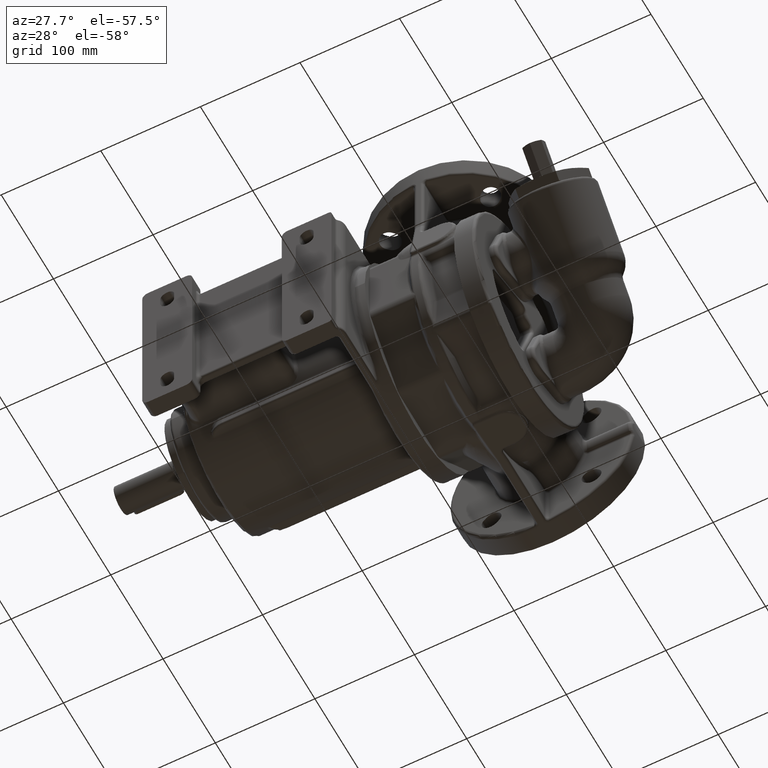
[diagram: clean part render]
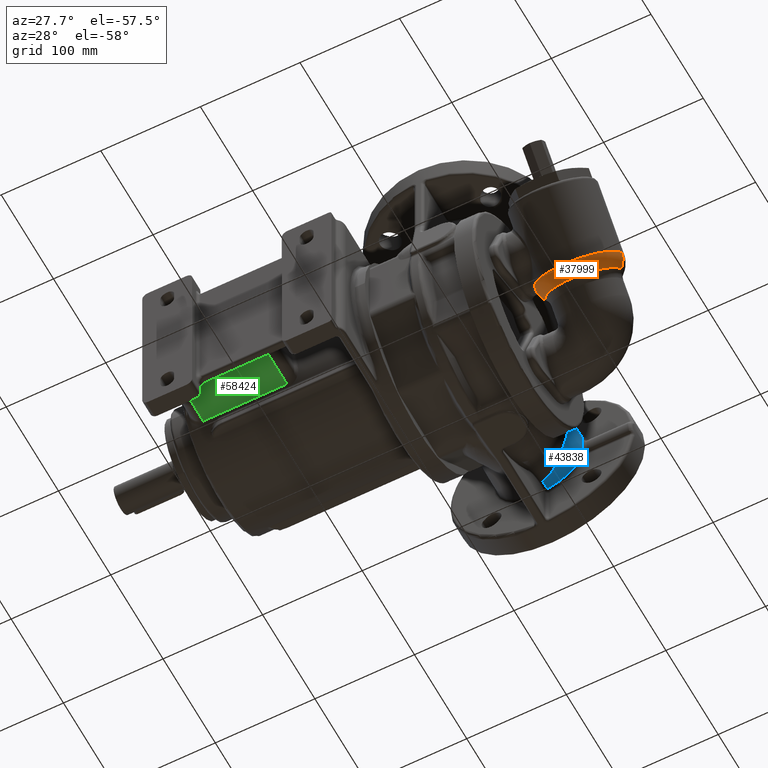
[diagram: same view with three faces highlighted in distinct colors, each labeled with its STEP entity id]
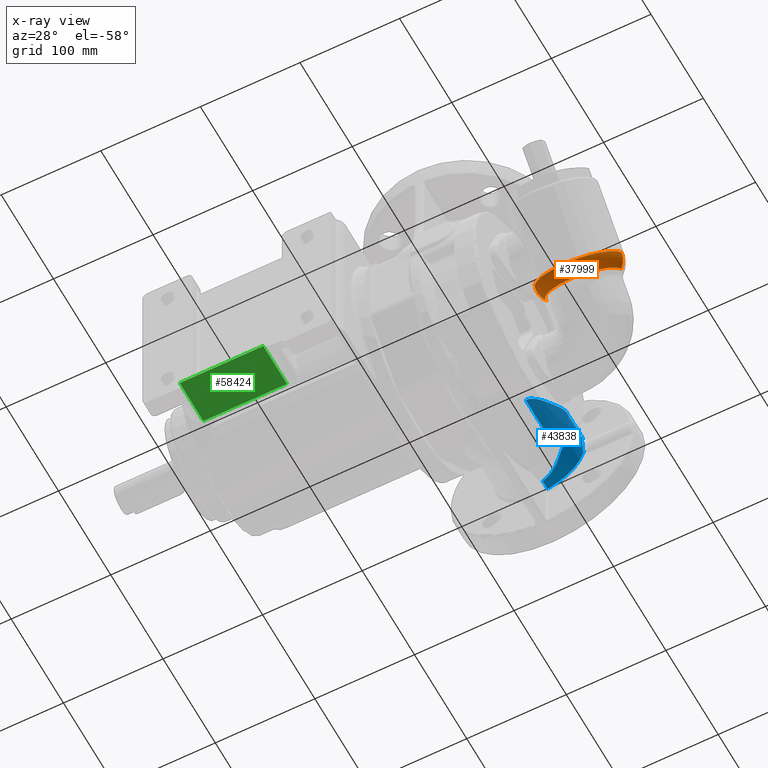
[diagram: x-ray of the same camera — body ghosted, the three highlighted faces saturated]
A machine part, auxiliary view with three faces highlighted in distinct colors.
The next image is the same camera in x-ray (body ghosted, the three faces saturated) — at least one of them is partly hidden behind the body in this view.
Their STEP definitions:

[orange] entity #37999 — the highlighted toroidal blend (fillet) surface has major radius 22.5 mm and minor (blend) radius 20 mm.
#6096=CARTESIAN_POINT('',(1.79E2,-1.590990257670E1,1.590990257670E1));
#6097=DIRECTION('',(0.E0,-7.071067811865E-1,7.071067811865E-1));
#6098=DIRECTION('',(-9.073090748338E-1,-2.973131705158E-1,-2.973131705158E-1));
#6099=AXIS2_PLACEMENT_3D('',#6096,#6097,#6098);
#6205=CARTESIAN_POINT('',(1.79E2,-6.311013480818E0,6.311013480818E0));
#6206=DIRECTION('',(0.E0,-7.071067811865E-1,7.071067811865E-1));
#6207=DIRECTION('',(-1.E0,0.E0,0.E0));
#6208=AXIS2_PLACEMENT_3D('',#6205,#6206,#6207);
#6210=CARTESIAN_POINT('',(1.371925188613E2,-1.222064980557E1,1.222064980557E1));
#6211=CARTESIAN_POINT('',(1.371925188592E2,-1.241578668380E1,1.202551306773E1));
#6212=CARTESIAN_POINT('',(1.371961475407E2,-1.281062971953E1,1.164025214782E1));
#6213=CARTESIAN_POINT('',(1.372124981408E2,-1.341705676913E1,1.107694824671E1));
#6214=CARTESIAN_POINT('',(1.372397667813E2,-1.403622617381E1,1.052952719948E1));
#6215=CARTESIAN_POINT('',(1.372779667228E2,-1.466734413773E1,9.998561249368E0));
#6216=CARTESIAN_POINT('',(1.373271287975E2,-1.530962062334E1,9.484571353425E0));
#6217=CARTESIAN_POINT('',(1.373872806116E2,-1.596212133241E1,8.988119521953E0));
#6218=CARTESIAN_POINT('',(1.374584635580E2,-1.662399777997E1,8.509629649394E0));
#6219=CARTESIAN_POINT('',(1.375407252659E2,-1.729437834494E1,8.049483013078E0));
#6220=CARTESIAN_POINT('',(1.376341204536E2,-1.797239762651E1,7.607997300862E0));
#6221=CARTESIAN_POINT('',(1.377387130676E2,-1.865721346625E1,7.185421527930E0));
#6222=CARTESIAN_POINT('',(1.378545750662E2,-1.934799932101E1,6.781946082161E0));
#6223=CARTESIAN_POINT('',(1.379817878149E2,-2.004395481947E1,6.397700865120E0));
#6224=CARTESIAN_POINT('',(1.381204415103E2,-2.074430432267E1,6.032762244935E0));
#6225=CARTESIAN_POINT('',(1.382706359402E2,-2.144830131718E1,5.687155244291E0));
#6226=CARTESIAN_POINT('',(1.384324812599E2,-2.215523134939E1,5.360857124907E0));
#6227=CARTESIAN_POINT('',(1.386060989676E2,-2.286441327797E1,5.053801013261E0));
#6228=CARTESIAN_POINT('',(1.387916215160E2,-2.357519502708E1,4.765881833091E0));
#6229=CARTESIAN_POINT('',(1.389891932427E2,-2.428695567025E1,4.496959793906E0));
#6230=CARTESIAN_POINT('',(1.391989699979E2,-2.499910074762E1,4.246865272354E0));
#6231=CARTESIAN_POINT('',(1.394211190810E2,-2.571105957208E1,4.015402679458E0));
#6232=CARTESIAN_POINT('',(1.396558194069E2,-2.642228347800E1,3.802352113378E0));
#6233=CARTESIAN_POINT('',(1.399032738270E2,-2.713227557354E1,3.607463481014E0));
#6234=CARTESIAN_POINT('',(1.401636692340E2,-2.784047567169E1,3.430492436284E0));
#6235=CARTESIAN_POINT('',(1.403459959116E2,-2.831097980187E1,3.324292417432E0));
#6236=CARTESIAN_POINT('',(1.404393643233E2,-2.854571232238E1,3.274092831016E0));
#6264=CARTESIAN_POINT('',(1.371925188613E2,-1.222064980557E1,1.222064980557E1));
#6266=CARTESIAN_POINT('',(1.565E2,-1.590990257670E1,1.590990257670E1));
#6267=DIRECTION('',(0.E0,7.071067811865E-1,7.071067811865E-1));
#6268=DIRECTION('',(-7.34375E-1,4.799444547940E-1,-4.799444547940E-1));
#6269=AXIS2_PLACEMENT_3D('',#6266,#6267,#6268);
#6276=CARTESIAN_POINT('',(2.015E2,-1.590990257670E1,1.590990257670E1));
#6277=DIRECTION('',(0.E0,-7.071067811865E-1,-7.071067811865E-1));
#6278=DIRECTION('',(7.34375E-1,4.799444547940E-1,-4.799444547940E-1));
#6279=AXIS2_PLACEMENT_3D('',#6276,#6277,#6278);
#22942=CARTESIAN_POINT('',(1.418125E2,-6.311013480818E0,6.311013480818E0));
#22944=VERTEX_POINT('',#22942);
#22946=CARTESIAN_POINT('',(2.161875E2,-6.311013480818E0,6.311013480818E0));
#22948=VERTEX_POINT('',#22946);
#22949=CARTESIAN_POINT('',(2.215E2,-1.590990257670E1,1.590990257670E1));
#22950=VERTEX_POINT('',#22949);
#22955=CARTESIAN_POINT('',(1.404393643196E2,-2.854571232362E1,
3.274092829776E0));
#22956=VERTEX_POINT('',#22955);
#22973=VERTEX_POINT('',#6264);
#37983=CARTESIAN_POINT('',(1.79E2,-1.590990257670E1,1.590990257670E1));
#37984=DIRECTION('',(0.E0,-7.071067811865E-1,7.071067811865E-1));
#37985=DIRECTION('',(-1.E0,0.E0,0.E0));
#37986=AXIS2_PLACEMENT_3D('',#37983,#37984,#37985);
#37987=TOROIDAL_SURFACE('',#37986,2.25E1,2.E1);
#37988=ORIENTED_EDGE('',*,*,#37976,.T.);
#37990=ORIENTED_EDGE('',*,*,#37989,.F.);
#37992=ORIENTED_EDGE('',*,*,#37991,.F.);
#37994=ORIENTED_EDGE('',*,*,#37993,.T.);
#37996=ORIENTED_EDGE('',*,*,#37995,.T.);
#37997=EDGE_LOOP('',(#37988,#37990,#37992,#37994,#37996));
#37998=FACE_OUTER_BOUND('',#37997,.F.);
#37999=ADVANCED_FACE('',(#37998),#37987,.T.);
#6100=CIRCLE('',#6099,4.25E1);
#6209=CIRCLE('',#6208,3.71875E1);
#6237=B_SPLINE_CURVE_WITH_KNOTS('',3,(#6210,#6211,#6212,#6213,#6214,#6215,#6216,
#6217,#6218,#6219,#6220,#6221,#6222,#6223,#6224,#6225,#6226,#6227,#6228,#6229,
#6230,#6231,#6232,#6233,#6234,#6235,#6236),.UNSPECIFIED.,.F.,.F.,(4,1,1,1,1,1,1,
1,1,1,1,1,1,1,1,1,1,1,1,1,1,1,1,1,4),(0.E0,4.166666666667E-2,8.333333333333E-2,
1.25E-1,1.666666666667E-1,2.083333333333E-1,2.5E-1,2.916666666667E-1,
3.333333333333E-1,3.75E-1,4.166666666667E-1,4.583333333333E-1,5.E-1,
5.416666666667E-1,5.833333333333E-1,6.25E-1,6.666666666667E-1,7.083333333333E-1,
7.5E-1,7.916666666667E-1,8.333333333333E-1,8.75E-1,9.166666666667E-1,
9.583333333333E-1,1.E0),.UNSPECIFIED.);
#6270=CIRCLE('',#6269,2.E1);
#6280=CIRCLE('',#6279,2.E1);
#37976=EDGE_CURVE('',#22956,#22950,#6100,.T.);
#37989=EDGE_CURVE('',#22948,#22950,#6280,.T.);
#37991=EDGE_CURVE('',#22944,#22948,#6209,.T.);
#37993=EDGE_CURVE('',#22944,#22973,#6270,.T.);
#37995=EDGE_CURVE('',#22973,#22956,#6237,.T.);

[blue] entity #43838 — the highlighted cylindrical surface (partial cylindrical patch) has radius 45 mm, axis along (0, -1, 0).
#8057=CARTESIAN_POINT('',(6.903399398247E1,9.830340739416E1,4.349674679240E1));
#8092=CARTESIAN_POINT('',(6.499999265160E1,9.830339240783E1,4.437059729568E1));
#8158=CARTESIAN_POINT('',(5.75E1,1.4E2,-4.278695813827E-14));
#8159=DIRECTION('',(0.E0,1.E0,0.E0));
#8160=DIRECTION('',(1.666666666667E-1,0.E0,9.860132971833E-1));
#8161=AXIS2_PLACEMENT_3D('',#8158,#8159,#8160);
#8163=CARTESIAN_POINT('',(1.012622750637E2,1.4E2,1.048156864453E1));
#8164=CARTESIAN_POINT('',(1.012881180922E2,1.398713235656E2,1.037366970562E1));
#8165=CARTESIAN_POINT('',(1.013398652534E2,1.396184036645E2,1.015409622970E1));
#8166=CARTESIAN_POINT('',(1.014174539180E2,1.392519061344E2,9.813216345716E0));
#8167=CARTESIAN_POINT('',(1.014945477903E2,1.388991199234E2,9.461718081104E0));
#8168=CARTESIAN_POINT('',(1.015707679617E2,1.385604399025E2,9.100221286058E0));
#8169=CARTESIAN_POINT('',(1.016457292662E2,1.382363144604E2,8.729452558447E0));
#8170=CARTESIAN_POINT('',(1.017190856976E2,1.379270304366E2,8.350043954342E0));
#8171=CARTESIAN_POINT('',(1.017905088917E2,1.376328542703E2,7.962630412139E0));
#8172=CARTESIAN_POINT('',(1.018596915019E2,1.373539865520E2,7.567838497562E0));
#8173=CARTESIAN_POINT('',(1.019263463290E2,1.370906086326E2,7.166294106447E0));
#8174=CARTESIAN_POINT('',(1.019902127205E2,1.368428271671E2,6.758584478795E0));
#8175=CARTESIAN_POINT('',(1.020510515950E2,1.366107364472E2,6.345284227472E0));
#8176=CARTESIAN_POINT('',(1.021086489014E2,1.363943680697E2,5.926928539637E0));
#8177=CARTESIAN_POINT('',(1.021628115883E2,1.361937496592E2,5.504033379622E0));
#8178=CARTESIAN_POINT('',(1.022133690100E2,1.360088591696E2,5.077077847482E0));
#8179=CARTESIAN_POINT('',(1.022601698393E2,1.358396792431E2,4.646518777121E0));
#8180=CARTESIAN_POINT('',(1.023030824158E2,1.356861531696E2,4.212777623507E0));
#8181=CARTESIAN_POINT('',(1.023419921390E2,1.355482365871E2,3.776252179700E0));
#8182=CARTESIAN_POINT('',(1.023768008674E2,1.354258564436E2,3.337310671234E0));
#8183=CARTESIAN_POINT('',(1.024074250263E2,1.353189584839E2,2.896299369471E0));
#8184=CARTESIAN_POINT('',(1.024337947042E2,1.352274684370E2,2.453540472138E0));
#8185=CARTESIAN_POINT('',(1.024558522391E2,1.351513354929E2,2.009337587655E0));
#8186=CARTESIAN_POINT('',(1.024735512964E2,1.350904962418E2,1.563976669825E0));
#8187=CARTESIAN_POINT('',(1.024868559016E2,1.350449133656E2,1.117730024947E0));
#8188=CARTESIAN_POINT('',(1.024957397403E2,1.350145429839E2,6.708586915973E-1));
#8189=CARTESIAN_POINT('',(1.025001855832E2,1.349993677636E2,2.236158376735E-1));
#8190=CARTESIAN_POINT('',(1.025001849151E2,1.349993686015E2,
-2.237501326107E-1));
#8191=CARTESIAN_POINT('',(1.024957377421E2,1.350145512539E2,
-6.709925338234E-1));
#8192=CARTESIAN_POINT('',(1.024868525976E2,1.350449232984E2,-1.117862857203E0));
#8193=CARTESIAN_POINT('',(1.024735467154E2,1.350905133403E2,-1.564108241112E0));
#8194=CARTESIAN_POINT('',(1.024558464389E2,1.351513542212E2,-2.009467219791E0));
#8195=CARTESIAN_POINT('',(1.024337877237E2,1.352274938458E2,-2.453668164051E0));
#8196=CARTESIAN_POINT('',(1.024074169663E2,1.353189854572E2,-2.896424210257E0));
#8197=CARTESIAN_POINT('',(1.023767917566E2,1.354258894380E2,-3.337433045622E0));
#8198=CARTESIAN_POINT('',(1.023419821356E2,1.355482710341E2,-3.776370842221E0));
#8199=CARTESIAN_POINT('',(1.023030715263E2,1.356861928148E2,-4.212893301513E0));
#8200=CARTESIAN_POINT('',(1.022601582886E2,1.358397201332E2,-4.646629928461E0));
#8201=CARTESIAN_POINT('',(1.022133567364E2,1.360089044440E2,-5.077185825479E0));
#8202=CARTESIAN_POINT('',(1.021627988837E2,1.361937959903E2,-5.504136360967E0));
#8203=CARTESIAN_POINT('',(1.021086356956E2,1.363944177536E2,-5.927027820148E0));
#8204=CARTESIAN_POINT('',(1.020510382406E2,1.366107867531E2,-6.345377886765E0));
#8205=CARTESIAN_POINT('',(1.019901990590E2,1.368428799826E2,-6.758674315103E0));
#8206=CARTESIAN_POINT('',(1.019263327161E2,1.370906618705E2,-7.166378407813E0));
#8207=CARTESIAN_POINT('',(1.018596777415E2,1.373540415149E2,-7.567919082717E0));
#8208=CARTESIAN_POINT('',(1.017904953304E2,1.376329095053E2,-7.962705751224E0));
#8209=CARTESIAN_POINT('',(1.017190725548E2,1.379270853105E2,-8.350113448245E0));
#8210=CARTESIAN_POINT('',(1.016457168824E2,1.382363674889E2,-8.729515102862E0));
#8211=CARTESIAN_POINT('',(1.015707559712E2,1.385604922146E2,-9.100279279917E0));
#8212=CARTESIAN_POINT('',(1.014945370076E2,1.388991687171E2,-9.461768079629E0));
#8213=CARTESIAN_POINT('',(1.014174456226E2,1.392519449116E2,-9.813253278937E0));
#8214=CARTESIAN_POINT('',(1.013398606689E2,1.396184260721E2,-1.015411581034E1));
#8215=CARTESIAN_POINT('',(1.012881164682E2,1.398713316833E2,-1.037367648350E1));
#8216=CARTESIAN_POINT('',(1.012622750637E2,1.4E2,-1.048156864453E1));
#8218=CARTESIAN_POINT('',(5.75E1,1.4E2,-4.278695813827E-14));
#8219=DIRECTION('',(0.E0,1.E0,0.E0));
#8220=DIRECTION('',(9.724950014153E-1,0.E0,-2.329237476562E-1));
#8221=AXIS2_PLACEMENT_3D('',#8218,#8219,#8220);
#8223=DIRECTION('',(-8.176820433954E-7,-9.999999999996E-1,2.366474029886E-7));
#8224=VECTOR('',#8223,9.017613873599E0);
#8225=CARTESIAN_POINT('',(6.5E1,1.4E2,-4.437059837325E1));
#8226=LINE('',#8225,#8224);
#8227=CARTESIAN_POINT('',(7.967376191935E1,1.258671095826E2,-3.915769852122E1));
#8228=CARTESIAN_POINT('',(7.967420995754E1,1.258668635909E2,-3.915744482118E1));
#8229=CARTESIAN_POINT('',(7.967515933362E1,1.258666374029E2,-3.915688712333E1));
#8230=CARTESIAN_POINT('',(7.967647867214E1,1.258661020550E2,-3.915614814108E1));
#8231=CARTESIAN_POINT('',(7.967717907582E1,1.258654461505E2,-3.915574962077E1));
#8232=CARTESIAN_POINT('',(7.967749360285E1,1.258650574713E2,-3.915557147444E1));
#8234=CARTESIAN_POINT('',(7.967749360285E1,1.258650574713E2,-3.915557147444E1));
#8235=CARTESIAN_POINT('',(7.968287666457E1,1.258621012184E2,-3.915252253868E1));
#8236=CARTESIAN_POINT('',(7.969379850698E1,1.258564172801E2,-3.914633350091E1));
#8237=CARTESIAN_POINT('',(7.971017144137E1,1.258474111360E2,-3.913704641773E1));
#8238=CARTESIAN_POINT('',(7.972108376237E1,1.258410866489E2,-3.913085069585E1));
#8239=CARTESIAN_POINT('',(7.972662173147E1,1.258380396404E2,-3.912770483241E1));
#8241=CARTESIAN_POINT('',(7.972662173147E1,1.258380396404E2,-3.912770483241E1));
#8242=CARTESIAN_POINT('',(8.020362488068E1,1.255753166797E2,-3.885674130790E1));
#8243=CARTESIAN_POINT('',(8.114144985133E1,1.250349327253E2,-3.830093262950E1));
#8244=CARTESIAN_POINT('',(8.249912379050E1,1.241826790588E2,-3.742860302326E1));
#8245=CARTESIAN_POINT('',(8.380743082735E1,1.232912760484E2,-3.652058712676E1));
#8246=CARTESIAN_POINT('',(8.506678011738E1,1.223644402762E2,-3.557930385291E1));
#8247=CARTESIAN_POINT('',(8.627903400125E1,1.214083906710E2,-3.460584958825E1));
#8248=CARTESIAN_POINT('',(8.744590691510E1,1.204286403942E2,-3.360098138182E1));
#8249=CARTESIAN_POINT('',(8.838182287143E1,1.195966256227E2,-3.273781718850E1));
#8250=CARTESIAN_POINT('',(8.910952389940E1,1.189242809070E2,-3.203171846506E1));
#8251=CARTESIAN_POINT('',(8.946643406165E1,1.185861780600E2,-3.167350773211E1));
#8252=CARTESIAN_POINT('',(8.964314184329E1,1.184166548536E2,-3.149314895674E1));
#8254=CARTESIAN_POINT('',(8.964314184329E1,1.184166548536E2,-3.149314895674E1));
#8255=CARTESIAN_POINT('',(8.991988590679E1,1.182846385302E2,-3.121069315974E1));
#8256=CARTESIAN_POINT('',(9.046666877897E1,1.180186515952E2,-3.063773310693E1));
#8257=CARTESIAN_POINT('',(9.126635202103E1,1.176141723451E2,-2.975412732324E1));
#8258=CARTESIAN_POINT('',(9.204414078242E1,1.172054230567E2,-2.884751121736E1));
#8259=CARTESIAN_POINT('',(9.279896460281E1,1.167934304255E2,-2.791883158406E1));
#8260=CARTESIAN_POINT('',(9.352967533614E1,1.163794515777E2,-2.696926658731E1));
#8261=CARTESIAN_POINT('',(9.423514155458E1,1.159647885517E2,-2.600015828880E1));
#8262=CARTESIAN_POINT('',(9.491420310525E1,1.155509056879E2,-2.501310110064E1));
#8263=CARTESIAN_POINT('',(9.556570528923E1,1.151394631914E2,-2.400995493835E1));
#8264=CARTESIAN_POINT('',(9.618871892122E1,1.147320170097E2,-2.299251413194E1));
#8265=CARTESIAN_POINT('',(9.678211658933E1,1.143303897300E2,-2.196322970132E1));
#8266=CARTESIAN_POINT('',(9.734526276618E1,1.139362289085E2,-2.092410292586E1));
#8267=CARTESIAN_POINT('',(9.787785065053E1,1.135508480602E2,-1.987677390133E1));
#8268=CARTESIAN_POINT('',(9.837933135849E1,1.131758239141E2,-1.882366254277E1));
#8269=CARTESIAN_POINT('',(9.869300926313E1,1.129334087380E2,-1.811860229016E1));
#8270=CARTESIAN_POINT('',(9.884476611535E1,1.128142066322E2,-1.776542470270E1));
#8272=CARTESIAN_POINT('',(9.884476611535E1,1.128142066322E2,-1.776542470270E1));
#8273=CARTESIAN_POINT('',(9.899999988202E1,1.126922709628E2,-1.740415514714E1));
#8274=CARTESIAN_POINT('',(9.930231616926E1,1.124450341808E2,-1.667457548897E1));
#8275=CARTESIAN_POINT('',(9.973243662902E1,1.120650016373E2,-1.555326856078E1));
#8276=CARTESIAN_POINT('',(1.001323711895E2,1.116844753670E2,-1.442078315196E1));
#8277=CARTESIAN_POINT('',(1.004987966766E2,1.113106037796E2,-1.328790232782E1));
#8278=CARTESIAN_POINT('',(1.008286716036E2,1.109512341167E2,-1.216833528878E1));
#8279=CARTESIAN_POINT('',(1.011212611583E2,1.106124172042E2,-1.107250715366E1));
#8280=CARTESIAN_POINT('',(1.013777568493E2,1.102979110474E2,-1.000646073319E1));
#8281=CARTESIAN_POINT('',(1.016007914577E2,1.100090900446E2,-8.971156210902E0));
#8282=CARTESIAN_POINT('',(1.017935405413E2,1.097456613509E2,-7.963843735154E0));
#8283=CARTESIAN_POINT('',(1.019591270285E2,1.095063335082E2,-6.979309290663E0));
#8284=CARTESIAN_POINT('',(1.021001890155E2,1.092894730826E2,-6.011404251863E0));
#8285=CARTESIAN_POINT('',(1.022187499241E2,1.090934307832E2,-5.053809185847E0));
#8286=CARTESIAN_POINT('',(1.023162005040E2,1.089167123684E2,-4.100417428756E0));
#8287=CARTESIAN_POINT('',(1.023933531822E2,1.087580224464E2,-3.145535141736E0));
#8288=CARTESIAN_POINT('',(1.024505529959E2,1.086159896940E2,-2.182087667732E0));
#8289=CARTESIAN_POINT('',(1.024876214676E2,1.084891392425E2,-1.202002199716E0));
#8290=CARTESIAN_POINT('',(1.025034866578E2,1.083752405723E2,
-1.895345611641E-1));
#8291=CARTESIAN_POINT('',(1.024985784734E2,1.083082159275E2,4.994030500184E-1));
#8292=CARTESIAN_POINT('',(1.024920116517E2,1.082768504425E2,8.478723591643E-1));
#8294=CARTESIAN_POINT('',(1.024920116517E2,1.082768504425E2,8.478723591643E-1));
#8295=CARTESIAN_POINT('',(1.024863892294E2,1.082500053137E2,1.146223832458E0));
#8296=CARTESIAN_POINT('',(1.024691535671E2,1.082019804183E2,1.743299642005E0));
#8297=CARTESIAN_POINT('',(1.024259979750E2,1.081479184053E2,2.631130522172E0));
#8298=CARTESIAN_POINT('',(1.023639036773E2,1.081099850981E2,3.536580773057E0));
#8299=CARTESIAN_POINT('',(1.022832180958E2,1.080890365857E2,4.442675299450E0));
#8300=CARTESIAN_POINT('',(1.021849797613E2,1.080851742852E2,5.340683963937E0));
#8301=CARTESIAN_POINT('',(1.020692200347E2,1.080983679449E2,6.233440633893E0));
#8302=CARTESIAN_POINT('',(1.019345816735E2,1.081287733302E2,7.130673921493E0));
#8303=CARTESIAN_POINT('',(1.017788947803E2,1.081767848595E2,8.041868348851E0));
#8304=CARTESIAN_POINT('',(1.015992140909E2,1.082429335130E2,8.976169073587E0));
#8305=CARTESIAN_POINT('',(1.013919866315E2,1.083276687861E2,9.941414386432E0));
#8306=CARTESIAN_POINT('',(1.011535531984E2,1.084309258772E2,1.094235617505E1));
#8307=CARTESIAN_POINT('',(1.008808870916E2,1.085515945022E2,1.197899205852E1));
#8308=CARTESIAN_POINT('',(1.005725191645E2,1.086870035452E2,1.304532577848E1));
#8309=CARTESIAN_POINT('',(1.002293250457E2,1.088327507789E2,1.412949184018E1));
#8310=CARTESIAN_POINT('',(9.985460580470E1,1.089831705543E2,1.521604215834E1));
#8311=CARTESIAN_POINT('',(9.945358090959E1,1.091322401594E2,1.628894746442E1));
#8312=CARTESIAN_POINT('',(9.903108567604E1,1.092749773761E2,1.733744282035E1));
#8313=CARTESIAN_POINT('',(9.859164240834E1,1.094074401665E2,1.835420105342E1));
#8314=CARTESIAN_POINT('',(9.813814005988E1,1.095272048256E2,1.933708596557E1));
#8315=CARTESIAN_POINT('',(9.767302424072E1,1.096324974759E2,2.028521250877E1));
#8316=CARTESIAN_POINT('',(9.735728589688E1,1.096922773621E2,2.089284061456E1));
#8317=CARTESIAN_POINT('',(9.719826441164E1,1.097194785039E2,2.119074804493E1));
#8319=CARTESIAN_POINT('',(9.719826441164E1,1.097194785039E2,2.119074804493E1));
#8320=CARTESIAN_POINT('',(9.708006807388E1,1.097396889585E2,2.141217521328E1));
#8321=CARTESIAN_POINT('',(9.683868536328E1,1.097743475056E2,2.185545543171E1));
#8322=CARTESIAN_POINT('',(9.646146771333E1,1.098089875152E2,2.252112682196E1));
#8323=CARTESIAN_POINT('',(9.606861270276E1,1.098263836022E2,2.318759190996E1));
#8324=CARTESIAN_POINT('',(9.565901097325E1,1.098262033966E2,2.385573724643E1));
#8325=CARTESIAN_POINT('',(9.523574814547E1,1.098081879237E2,2.451978809483E1));
#8326=CARTESIAN_POINT('',(9.480102496328E1,1.097724084554E2,2.517618636003E1));
#8327=CARTESIAN_POINT('',(9.435447947096E1,1.097188011334E2,2.582545485452E1));
#8328=CARTESIAN_POINT('',(9.389741366472E1,1.096474236065E2,2.646571588537E1));
#8329=CARTESIAN_POINT('',(9.343020225347E1,1.095582739719E2,2.709659653345E1));
#8330=CARTESIAN_POINT('',(9.295320316196E1,1.094513144591E2,2.771776099693E1));
#8331=CARTESIAN_POINT('',(9.246687848158E1,1.093265230582E2,2.832878534855E1));
#8332=CARTESIAN_POINT('',(9.197156000328E1,1.091838408990E2,2.892944777132E1));
#8333=CARTESIAN_POINT('',(9.146757546190E1,1.090231911112E2,2.951955088168E1));
#8334=CARTESIAN_POINT('',(9.095526274114E1,1.088444706326E2,3.009890422154E1));
#8335=CARTESIAN_POINT('',(9.043500618573E1,1.086476029940E2,3.066728794412E1));
#8336=CARTESIAN_POINT('',(8.990698698447E1,1.084323981683E2,3.122471865595E1));
#8337=CARTESIAN_POINT('',(8.937136032945E1,1.081986165875E2,3.177122655441E1));
#8338=CARTESIAN_POINT('',(8.882869743538E1,1.079462081583E2,3.230643182580E1));
#8339=CARTESIAN_POINT('',(8.827954922943E1,1.076750966712E2,3.283002023659E1));
#8340=CARTESIAN_POINT('',(8.790964452893E1,1.074818894654E2,3.317101871436E1));
#8341=CARTESIAN_POINT('',(8.772377168549E1,1.073821364233E2,3.333952025373E1));
#8343=CARTESIAN_POINT('',(8.772377168549E1,1.073821364233E2,3.333952025373E1));
#8344=CARTESIAN_POINT('',(8.745701337742E1,1.072390923756E2,3.358134814093E1));
#8345=CARTESIAN_POINT('',(8.691746090388E1,1.069470553628E2,3.405917599154E1));
#8346=CARTESIAN_POINT('',(8.605380760798E1,1.064728543243E2,3.478632349944E1));
#8347=CARTESIAN_POINT('',(8.524237150971E1,1.060198995574E2,3.543538199179E1));
#8348=CARTESIAN_POINT('',(8.454150491027E1,1.056227275263E2,3.597195531364E1));
#8349=CARTESIAN_POINT('',(8.391656743359E1,1.052636463483E2,3.643269544608E1));
#8350=CARTESIAN_POINT('',(8.336180904500E1,1.049399818757E2,3.682800931657E1));
#8351=CARTESIAN_POINT('',(8.286715143327E1,1.046469295129E2,3.717007121718E1));
#8352=CARTESIAN_POINT('',(8.242464474549E1,1.043807681045E2,3.746793066719E1));
#8353=CARTESIAN_POINT('',(8.202989048366E1,1.041399325453E2,3.772731032517E1));
#8354=CARTESIAN_POINT('',(8.167860279531E1,1.039226655713E2,3.795321567406E1));
#8355=CARTESIAN_POINT('',(8.136535159798E1,1.037273026619E2,3.815082049815E1));
#8356=CARTESIAN_POINT('',(8.117899242077E1,1.036072508356E2,3.826639247660E1));
#8357=CARTESIAN_POINT('',(8.109095504603E1,1.035519390368E2,3.832059243814E1));
#8359=CARTESIAN_POINT('',(8.109095504603E1,1.035519390368E2,3.832059243814E1));
#8360=CARTESIAN_POINT('',(8.078233632734E1,1.033547311921E2,3.851058451289E1));
#8361=CARTESIAN_POINT('',(8.017309841113E1,1.029738747397E2,3.887527174744E1));
#8362=CARTESIAN_POINT('',(7.929287442684E1,1.024513133141E2,3.937519615036E1));
#8363=CARTESIAN_POINT('',(7.842241125129E1,1.019613058443E2,3.984415824663E1));
#8364=CARTESIAN_POINT('',(7.759441514290E1,1.015212629293E2,4.026790540981E1));
#8365=CARTESIAN_POINT('',(7.674390482082E1,1.010953708358E2,4.068130141876E1));
#8366=CARTESIAN_POINT('',(7.590376244915E1,1.006994849929E2,4.106795142861E1));
#8367=CARTESIAN_POINT('',(7.507486008312E1,1.003330104477E2,4.142946646058E1));
#8368=CARTESIAN_POINT('',(7.422488079499E1,9.998113123173E1,4.177990682102E1));
#8369=CARTESIAN_POINT('',(7.337390902021E1,9.965175902328E1,4.211047666074E1));
#8370=CARTESIAN_POINT('',(7.252606233003E1,9.934585207253E1,4.242040222767E1));
#8371=CARTESIAN_POINT('',(7.166367176803E1,9.905663877208E1,4.271616668126E1));
#8372=CARTESIAN_POINT('',(7.078836801018E1,9.878434012433E1,4.299651268393E1));
#8373=CARTESIAN_POINT('',(6.991183457375E1,9.853230407762E1,4.325764381358E1));
#8374=CARTESIAN_POINT('',(6.932666742926E1,9.837752423402E1,4.341913879931E1));
#8375=CARTESIAN_POINT('',(6.903399398247E1,9.830340739416E1,4.349674679240E1));
#8377=CARTESIAN_POINT('',(5.75E1,9.830340840385E1,-1.964070011905E-14));
#8378=DIRECTION('',(0.E0,-1.E0,0.E0));
#8379=DIRECTION('',(2.563110695179E-1,0.E0,9.665943490641E-1));
#8380=AXIS2_PLACEMENT_3D('',#8377,#8378,#8379);
#8382=DIRECTION('',(1.762350074809E-7,1.E0,2.584293777434E-8));
#8383=VECTOR('',#8382,4.169660759217E1);
#8384=CARTESIAN_POINT('',(6.499999265160E1,9.830339240783E1,4.437059729568E1));
#8385=LINE('',#8384,#8383);
#11593=CARTESIAN_POINT('',(7.967376191935E1,1.258671095826E2,
-3.915769852122E1));
#11594=CARTESIAN_POINT('',(7.958824621339E1,1.259144015428E2,
-3.920612148008E1));
#11595=CARTESIAN_POINT('',(7.940527863626E1,1.260119918538E2,
-3.930896281585E1));
#11596=CARTESIAN_POINT('',(7.910142022023E1,1.261796026974E2,
-3.947687851635E1));
#11597=CARTESIAN_POINT('',(7.875817181969E1,1.263573049856E2,
-3.966290213811E1));
#11598=CARTESIAN_POINT('',(7.837955017451E1,1.265530868687E2,
-3.986367058923E1));
#11599=CARTESIAN_POINT('',(7.795469964981E1,1.267669946808E2,
-4.008354126269E1));
#11600=CARTESIAN_POINT('',(7.747745682079E1,1.270002018549E2,
-4.032377819487E1));
#11601=CARTESIAN_POINT('',(7.693935605492E1,1.272557908182E2,
-4.058628065088E1));
#11602=CARTESIAN_POINT('',(7.632714071847E1,1.275362828520E2,
-4.087430909146E1));
#11603=CARTESIAN_POINT('',(7.563033895716E1,1.278427913861E2,
-4.118877839517E1));
#11604=CARTESIAN_POINT('',(7.481471115736E1,1.281848372046E2,
-4.153915804023E1));
#11605=CARTESIAN_POINT('',(7.390790002632E1,1.285433407208E2,
-4.190579893637E1));
#11606=CARTESIAN_POINT('',(7.301973297284E1,1.288733283252E2,
-4.224257483070E1));
#11607=CARTESIAN_POINT('',(7.212495271775E1,1.291855732882E2,
-4.256067011118E1));
#11608=CARTESIAN_POINT('',(7.123064795391E1,1.294776642854E2,
-4.285746312373E1));
#11609=CARTESIAN_POINT('',(7.033820310079E1,1.297496911899E2,
-4.313316083585E1));
#11610=CARTESIAN_POINT('',(6.944555226E1,1.300025094250E2,-4.338881696991E1));
#11611=CARTESIAN_POINT('',(6.855349672932E1,1.302363765405E2,
-4.362455749013E1));
#11612=CARTESIAN_POINT('',(6.766316699974E1,1.304512855117E2,
-4.384048055828E1));
#11613=CARTESIAN_POINT('',(6.677502345273E1,1.306473170115E2,
-4.403689316978E1));
#11614=CARTESIAN_POINT('',(6.588784908250E1,1.308251592349E2,
-4.421443344217E1));
#11615=CARTESIAN_POINT('',(6.529590643662E1,1.309319751830E2,
-4.432057687532E1));
#11616=CARTESIAN_POINT('',(6.499999262646E1,1.309823861264E2,
-4.437059623925E1));
#21953=VERTEX_POINT('',#8343);
#21954=VERTEX_POINT('',#8357);
#21955=VERTEX_POINT('',#8319);
#21956=VERTEX_POINT('',#8294);
#21957=VERTEX_POINT('',#8272);
#21965=VERTEX_POINT('',#8227);
#21966=VERTEX_POINT('',#8232);
#21967=VERTEX_POINT('',#8239);
#21968=VERTEX_POINT('',#8252);
#21974=VERTEX_POINT('',#8057);
#22452=CARTESIAN_POINT('',(6.5E1,1.4E2,4.437059837325E1));
#22453=CARTESIAN_POINT('',(1.012622750637E2,1.4E2,1.048156864453E1));
#22454=VERTEX_POINT('',#22452);
#22455=VERTEX_POINT('',#22453);
#22460=VERTEX_POINT('',#8216);
#22464=CARTESIAN_POINT('',(6.5E1,1.4E2,-4.437059837325E1));
#22465=VERTEX_POINT('',#22464);
#22470=CARTESIAN_POINT('',(6.499999262646E1,1.309823861264E2,
-4.437059623925E1));
#22471=VERTEX_POINT('',#22470);
#22511=VERTEX_POINT('',#8092);
#43805=CARTESIAN_POINT('',(5.75E1,1.7E2,-5.944030350765E-14));
#43806=DIRECTION('',(0.E0,-1.E0,0.E0));
#43807=DIRECTION('',(0.E0,0.E0,-1.E0));
#43808=AXIS2_PLACEMENT_3D('',#43805,#43806,#43807);
#43809=CYLINDRICAL_SURFACE('',#43808,4.5E1);
#43811=ORIENTED_EDGE('',*,*,#43810,.T.);
#43813=ORIENTED_EDGE('',*,*,#43812,.T.);
#43815=ORIENTED_EDGE('',*,*,#43814,.T.);
#43817=ORIENTED_EDGE('',*,*,#43816,.T.);
#43819=ORIENTED_EDGE('',*,*,#43818,.F.);
#43821=ORIENTED_EDGE('',*,*,#43820,.T.);
#43823=ORIENTED_EDGE('',*,*,#43822,.T.);
#43825=ORIENTED_EDGE('',*,*,#43824,.T.);
#43826=ORIENTED_EDGE('',*,*,#34358,.T.);
#43828=ORIENTED_EDGE('',*,*,#43827,.T.);
#43829=ORIENTED_EDGE('',*,*,#34521,.T.);
#43831=ORIENTED_EDGE('',*,*,#43830,.T.);
#43832=ORIENTED_EDGE('',*,*,#43466,.T.);
#43833=ORIENTED_EDGE('',*,*,#43608,.T.);
#43834=ORIENTED_EDGE('',*,*,#43695,.T.);
#43835=ORIENTED_EDGE('',*,*,#43796,.T.);
#43836=EDGE_LOOP('',(#43811,#43813,#43815,#43817,#43819,#43821,#43823,#43825,
#43826,#43828,#43829,#43831,#43832,#43833,#43834,#43835));
#43837=FACE_OUTER_BOUND('',#43836,.F.);
#43838=ADVANCED_FACE('',(#43837),#43809,.T.);
#8162=CIRCLE('',#8161,4.5E1);
#8217=B_SPLINE_CURVE_WITH_KNOTS('',3,(#8163,#8164,#8165,#8166,#8167,#8168,#8169,
#8170,#8171,#8172,#8173,#8174,#8175,#8176,#8177,#8178,#8179,#8180,#8181,#8182,
#8183,#8184,#8185,#8186,#8187,#8188,#8189,#8190,#8191,#8192,#8193,#8194,#8195,
#8196,#8197,#8198,#8199,#8200,#8201,#8202,#8203,#8204,#8205,#8206,#8207,#8208,
#8209,#8210,#8211,#8212,#8213,#8214,#8215,#8216),.UNSPECIFIED.,.F.,.F.,(4,1,1,1,
1,1,1,1,1,1,1,1,1,1,1,1,1,1,1,1,1,1,1,1,1,1,1,1,1,1,1,1,1,1,1,1,1,1,1,1,1,1,1,1,
1,1,1,1,1,1,1,4),(0.E0,1.960784313725E-2,3.921568627451E-2,5.882352941176E-2,
7.843137254902E-2,9.803921568627E-2,1.176470588235E-1,1.372549019608E-1,
1.568627450980E-1,1.764705882353E-1,1.960784313725E-1,2.156862745098E-1,
2.352941176471E-1,2.549019607843E-1,2.745098039216E-1,2.941176470588E-1,
3.137254901961E-1,3.333333333333E-1,3.529411764706E-1,3.725490196078E-1,
3.921568627451E-1,4.117647058824E-1,4.313725490196E-1,4.509803921569E-1,
4.705882352941E-1,4.901960784314E-1,5.098039215686E-1,5.294117647059E-1,
5.490196078431E-1,5.686274509804E-1,5.882352941176E-1,6.078431372549E-1,
6.274509803922E-1,6.470588235294E-1,6.666666666667E-1,6.862745098039E-1,
7.058823529412E-1,7.254901960784E-1,7.450980392157E-1,7.647058823529E-1,
7.843137254902E-1,8.039215686275E-1,8.235294117647E-1,8.431372549020E-1,
8.627450980392E-1,8.823529411765E-1,9.019607843137E-1,9.215686274510E-1,
9.411764705882E-1,9.607843137255E-1,9.803921568627E-1,1.E0),.UNSPECIFIED.);
#8222=CIRCLE('',#8221,4.5E1);
#8233=B_SPLINE_CURVE_WITH_KNOTS('',3,(#8227,#8228,#8229,#8230,#8231,#8232),
.UNSPECIFIED.,.F.,.F.,(4,1,1,4),(0.E0,3.333333333333E-1,6.666666666667E-1,1.E0),
.UNSPECIFIED.);
#8240=B_SPLINE_CURVE_WITH_KNOTS('',3,(#8234,#8235,#8236,#8237,#8238,#8239),
.UNSPECIFIED.,.F.,.F.,(4,1,1,4),(0.E0,3.333333333333E-1,6.666666666667E-1,1.E0),
.UNSPECIFIED.);
#8253=B_SPLINE_CURVE_WITH_KNOTS('',3,(#8241,#8242,#8243,#8244,#8245,#8246,#8247,
#8248,#8249,#8250,#8251,#8252),.UNSPECIFIED.,.F.,.F.,(4,1,1,1,1,1,1,1,1,4),
(0.E0,1.249999995711E-1,2.499999994888E-1,3.749999994066E-1,4.999999993243E-1,
6.249999992421E-1,7.499999991599E-1,8.749999990776E-1,9.375000000411E-1,1.E0),
.UNSPECIFIED.);
#8271=B_SPLINE_CURVE_WITH_KNOTS('',3,(#8254,#8255,#8256,#8257,#8258,#8259,#8260,
#8261,#8262,#8263,#8264,#8265,#8266,#8267,#8268,#8269,#8270),.UNSPECIFIED.,.F.,
.F.,(4,1,1,1,1,1,1,1,1,1,1,1,1,1,4),(0.E0,7.142857142857E-2,1.428571428571E-1,
2.142857142857E-1,2.857142857143E-1,3.571428571429E-1,4.285714285714E-1,5.E-1,
5.714285714286E-1,6.428571428571E-1,7.142857142857E-1,7.857142857143E-1,
8.571428571429E-1,9.285714285714E-1,1.E0),.UNSPECIFIED.);
#8293=B_SPLINE_CURVE_WITH_KNOTS('',3,(#8272,#8273,#8274,#8275,#8276,#8277,#8278,
#8279,#8280,#8281,#8282,#8283,#8284,#8285,#8286,#8287,#8288,#8289,#8290,#8291,
#8292),.UNSPECIFIED.,.F.,.F.,(4,1,1,1,1,1,1,1,1,1,1,1,1,1,1,1,1,1,4),(0.E0,
5.555555555556E-2,1.111111111111E-1,1.666666666667E-1,2.222222222222E-1,
2.777777777778E-1,3.333333333333E-1,3.888888888889E-1,4.444444444444E-1,5.E-1,
5.555555555556E-1,6.111111111111E-1,6.666666666667E-1,7.222222222222E-1,
7.777777777778E-1,8.333333333333E-1,8.888888888889E-1,9.444444444444E-1,1.E0),
.UNSPECIFIED.);
#8318=B_SPLINE_CURVE_WITH_KNOTS('',3,(#8294,#8295,#8296,#8297,#8298,#8299,#8300,
#8301,#8302,#8303,#8304,#8305,#8306,#8307,#8308,#8309,#8310,#8311,#8312,#8313,
#8314,#8315,#8316,#8317),.UNSPECIFIED.,.F.,.F.,(4,1,1,1,1,1,1,1,1,1,1,1,1,1,1,1,
1,1,1,1,1,4),(0.E0,4.761904761905E-2,9.523809523810E-2,1.428571428571E-1,
1.904761904762E-1,2.380952380952E-1,2.857142857143E-1,3.333333333333E-1,
3.809523809524E-1,4.285714285714E-1,4.761904761905E-1,5.238095238095E-1,
5.714285714286E-1,6.190476190476E-1,6.666666666667E-1,7.142857142857E-1,
7.619047619048E-1,8.095238095238E-1,8.571428571429E-1,9.047619047619E-1,
9.523809523810E-1,1.E0),.UNSPECIFIED.);
#8342=B_SPLINE_CURVE_WITH_KNOTS('',3,(#8319,#8320,#8321,#8322,#8323,#8324,#8325,
#8326,#8327,#8328,#8329,#8330,#8331,#8332,#8333,#8334,#8335,#8336,#8337,#8338,
#8339,#8340,#8341),.UNSPECIFIED.,.F.,.F.,(4,1,1,1,1,1,1,1,1,1,1,1,1,1,1,1,1,1,1,
1,4),(0.E0,5.E-2,1.E-1,1.5E-1,2.E-1,2.5E-1,3.E-1,3.5E-1,4.E-1,4.5E-1,5.E-1,
5.5E-1,6.E-1,6.5E-1,7.E-1,7.5E-1,8.E-1,8.5E-1,9.E-1,9.5E-1,1.E0),.UNSPECIFIED.);
#8358=B_SPLINE_CURVE_WITH_KNOTS('',3,(#8343,#8344,#8345,#8346,#8347,#8348,#8349,
#8350,#8351,#8352,#8353,#8354,#8355,#8356,#8357),.UNSPECIFIED.,.F.,.F.,(4,1,1,1,
1,1,1,1,1,1,1,1,4),(0.E0,8.333333333333E-2,1.666666666667E-1,2.5E-1,
3.333333333333E-1,4.166666666667E-1,5.E-1,5.833333333333E-1,6.666666666667E-1,
7.5E-1,8.333333333333E-1,9.166666666667E-1,1.E0),.UNSPECIFIED.);
#8376=B_SPLINE_CURVE_WITH_KNOTS('',3,(#8359,#8360,#8361,#8362,#8363,#8364,#8365,
#8366,#8367,#8368,#8369,#8370,#8371,#8372,#8373,#8374,#8375),.UNSPECIFIED.,.F.,
.F.,(4,1,1,1,1,1,1,1,1,1,1,1,1,1,4),(0.E0,7.142857142857E-2,1.428571428571E-1,
2.142857142857E-1,2.857142857143E-1,3.571428571429E-1,4.285714285714E-1,5.E-1,
5.714285714286E-1,6.428571428571E-1,7.142857142857E-1,7.857142857143E-1,
8.571428571429E-1,9.285714285714E-1,1.E0),.UNSPECIFIED.);
#8381=CIRCLE('',#8380,4.5E1);
#11617=B_SPLINE_CURVE_WITH_KNOTS('',3,(#11593,#11594,#11595,#11596,#11597,
#11598,#11599,#11600,#11601,#11602,#11603,#11604,#11605,#11606,#11607,#11608,
#11609,#11610,#11611,#11612,#11613,#11614,#11615,#11616),.UNSPECIFIED.,.F.,.F.,(
4,1,1,1,1,1,1,1,1,1,1,1,1,1,1,1,1,1,1,1,1,4),(0.E0,4.761904761905E-2,
9.523809523810E-2,1.428571428571E-1,1.904761904762E-1,2.380952380952E-1,
2.857142857143E-1,3.333333333333E-1,3.809523809524E-1,4.285714285714E-1,
4.761904761905E-1,5.238095238095E-1,5.714285714286E-1,6.190476190476E-1,
6.666666666667E-1,7.142857142857E-1,7.619047619048E-1,8.095238095238E-1,
8.571428571429E-1,9.047619047619E-1,9.523809523810E-1,1.E0),.UNSPECIFIED.);
#34358=EDGE_CURVE('',#21968,#21957,#8271,.T.);
#34521=EDGE_CURVE('',#21956,#21955,#8318,.T.);
#43466=EDGE_CURVE('',#21953,#21954,#8358,.T.);
#43608=EDGE_CURVE('',#21954,#21974,#8376,.T.);
#43695=EDGE_CURVE('',#21974,#22511,#8381,.T.);
#43796=EDGE_CURVE('',#22511,#22454,#8385,.T.);
#43810=EDGE_CURVE('',#22454,#22455,#8162,.T.);
#43812=EDGE_CURVE('',#22455,#22460,#8217,.T.);
#43814=EDGE_CURVE('',#22460,#22465,#8222,.T.);
#43816=EDGE_CURVE('',#22465,#22471,#8226,.T.);
#43818=EDGE_CURVE('',#21965,#22471,#11617,.T.);
#43820=EDGE_CURVE('',#21965,#21966,#8233,.T.);
#43822=EDGE_CURVE('',#21966,#21967,#8240,.T.);
#43824=EDGE_CURVE('',#21967,#21968,#8253,.T.);
#43827=EDGE_CURVE('',#21957,#21956,#8293,.T.);
#43830=EDGE_CURVE('',#21955,#21953,#8342,.T.);

[green] entity #58424 — the highlighted planar face has unit normal (0, 0, -1).
#17644=DIRECTION('',(-1.E0,0.E0,0.E0));
#17645=VECTOR('',#17644,8.399999999404E1);
#17646=CARTESIAN_POINT('',(-8.850000000303E1,-1.11E2,-4.5E1));
#17647=LINE('',#17646,#17645);
#17648=DIRECTION('',(5.536063215975E-11,-1.E0,0.E0));
#17649=VECTOR('',#17648,4.513460696238E1);
#17650=CARTESIAN_POINT('',(-8.850000000553E1,-6.586539303762E1,-4.5E1));
#17651=LINE('',#17650,#17649);
#17652=DIRECTION('',(1.E0,0.E0,0.E0));
#17653=VECTOR('',#17652,8.399999999081E1);
#17654=CARTESIAN_POINT('',(-1.724999999963E2,-6.586539303762E1,-4.5E1));
#17655=LINE('',#17654,#17653);
#17656=DIRECTION('',(-1.624399691965E-11,-1.E0,0.E0));
#17657=VECTOR('',#17656,4.513460696238E1);
#17658=CARTESIAN_POINT('',(-1.724999999963E2,-6.586539303762E1,-4.5E1));
#17659=LINE('',#17658,#17657);
#17665=CARTESIAN_POINT('',(-8.850000000553E1,-6.586539303762E1,-4.5E1));
#21337=CARTESIAN_POINT('',(-1.725E2,-1.11E2,-4.5E1));
#21338=VERTEX_POINT('',#21337);
#21341=CARTESIAN_POINT('',(-8.850000000303E1,-1.11E2,-4.5E1));
#21342=VERTEX_POINT('',#21341);
#21349=VERTEX_POINT('',#17665);
#21353=CARTESIAN_POINT('',(-1.724999999963E2,-6.586539303762E1,-4.5E1));
#21354=VERTEX_POINT('',#21353);
#58412=CARTESIAN_POINT('',(-7.75E1,-1.14E2,-4.5E1));
#58413=DIRECTION('',(0.E0,0.E0,-1.E0));
#58414=DIRECTION('',(-1.E0,0.E0,0.E0));
#58415=AXIS2_PLACEMENT_3D('',#58412,#58413,#58414);
#58416=PLANE('',#58415);
#58417=ORIENTED_EDGE('',*,*,#56736,.F.);
#58419=ORIENTED_EDGE('',*,*,#58418,.F.);
#58420=ORIENTED_EDGE('',*,*,#56953,.F.);
#58421=ORIENTED_EDGE('',*,*,#58405,.T.);
#58422=EDGE_LOOP('',(#58417,#58419,#58420,#58421));
#58423=FACE_OUTER_BOUND('',#58422,.F.);
#58424=ADVANCED_FACE('',(#58423),#58416,.T.);
#56736=EDGE_CURVE('',#21342,#21338,#17647,.T.);
#56953=EDGE_CURVE('',#21354,#21349,#17655,.T.);
#58405=EDGE_CURVE('',#21354,#21338,#17659,.T.);
#58418=EDGE_CURVE('',#21349,#21342,#17651,.T.);